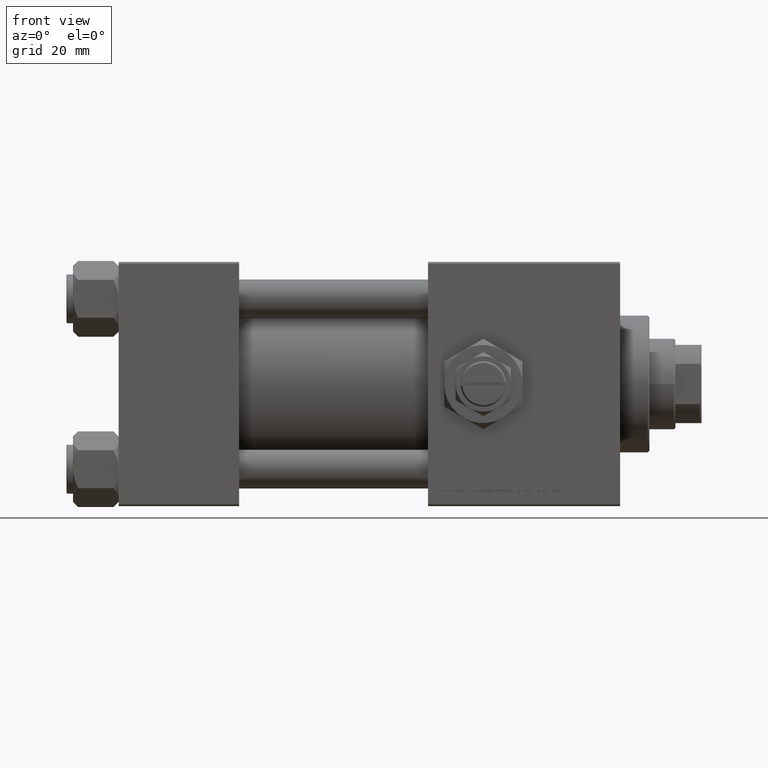
[diagram: clean part render]
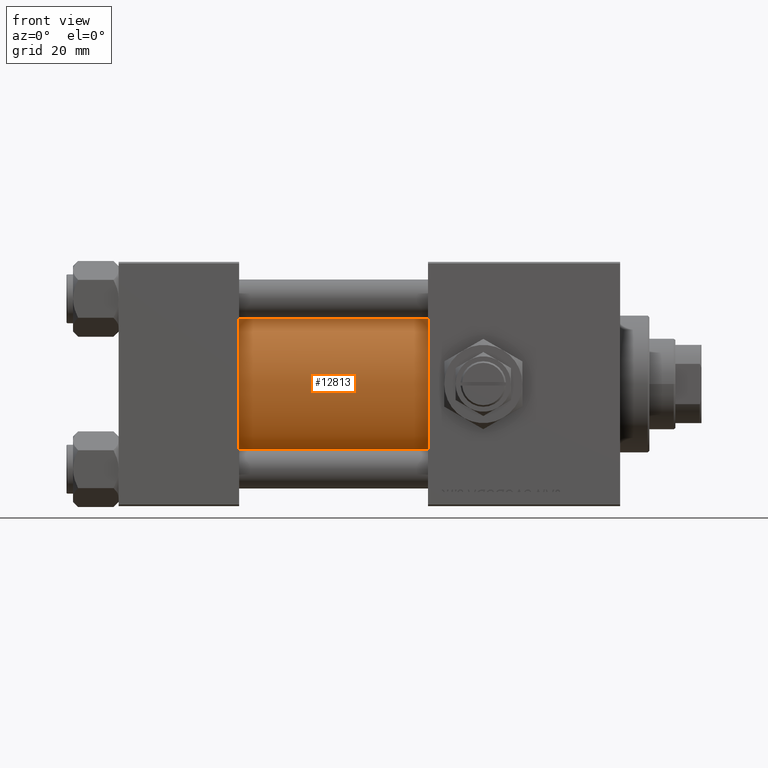
[diagram: same view with one face highlighted and labeled with its STEP entity id]
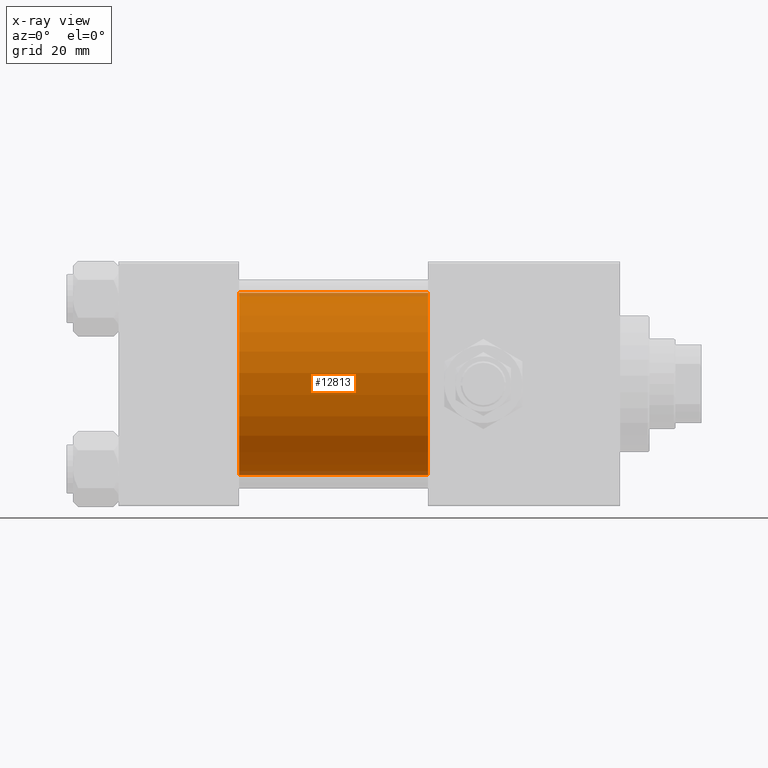
[diagram: x-ray of the same camera — body ghosted, the highlighted face saturated]
A machine part, front view. The second image highlights one B-rep face of the part: STEP entity #12813.
The next image is the same camera in x-ray: the body ghosted, the highlighted face saturated — about 4% of this face is hidden behind the body in this view.
In plain terms, the highlighted cylindrical surface (partial cylindrical patch) has radius 28 mm, axis along (-1, -0, -0).
Its self-contained STEP definition (entity closure, byte-faithful):
#1687 = EDGE_CURVE ( 'NONE', #24445, #44609, #29153, .T. ) ;
#1977 = ORIENTED_EDGE ( 'NONE', *, *, #17017, .T. ) ;
#2519 = CARTESIAN_POINT ( 'NONE',  ( 95.00000000000000000, -2.602085213965210642E-15, 28.00000000000000000 ) ) ;
#4693 = DIRECTION ( 'NONE',  ( -1.000000000000000000, -0.000000000000000000, -0.000000000000000000 ) ) ;
#5234 = LINE ( 'NONE', #17325, #42074 ) ;
#9062 = AXIS2_PLACEMENT_3D ( 'NONE', #31062, #11075, #18969 ) ;
#9189 = FACE_OUTER_BOUND ( 'NONE', #42716, .T. ) ;
#9947 = EDGE_CURVE ( 'NONE', #25914, #24445, #48574, .T. ) ;
#11075 = DIRECTION ( 'NONE',  ( 1.000000000000000000, 0.000000000000000000, 0.000000000000000000 ) ) ;
#12813 = ADVANCED_FACE ( 'NONE', ( #9189 ), #29192, .T. ) ;
#15985 = CARTESIAN_POINT ( 'NONE',  ( 37.00000000000000000, -2.602085213965210642E-15, 28.00000000000000000 ) ) ;
#17017 = EDGE_CURVE ( 'NONE', #25914, #48065, #5234, .T. ) ;
#17325 = CARTESIAN_POINT ( 'NONE',  ( 95.00000000000000000, -2.602085213965210642E-15, 28.00000000000000000 ) ) ;
#18969 = DIRECTION ( 'NONE',  ( 0.000000000000000000, 0.000000000000000000, -1.000000000000000000 ) ) ;
#19381 = CIRCLE ( 'NONE', #28645, 28.00000000000000000 ) ;
#24445 = VERTEX_POINT ( 'NONE', #44054 ) ;
#25914 = VERTEX_POINT ( 'NONE', #2519 ) ;
#28645 = AXIS2_PLACEMENT_3D ( 'NONE', #41309, #33404, #33147 ) ;
#29153 = LINE ( 'NONE', #45194, #29918 ) ;
#29192 = CYLINDRICAL_SURFACE ( 'NONE', #50346, 28.00000000000000000 ) ;
#29688 = DIRECTION ( 'NONE',  ( -1.000000000000000000, -0.000000000000000000, -0.000000000000000000 ) ) ;
#29918 = VECTOR ( 'NONE', #4693, 1000.000000000000000 ) ;
#30371 = ORIENTED_EDGE ( 'NONE', *, *, #1687, .F. ) ;
#31062 = CARTESIAN_POINT ( 'NONE',  ( 95.00000000000000000, -2.602085213965210642E-15, 0.000000000000000000 ) ) ;
#32618 = DIRECTION ( 'NONE',  ( 0.000000000000000000, 0.000000000000000000, 1.000000000000000000 ) ) ;
#33147 = DIRECTION ( 'NONE',  ( 0.000000000000000000, 0.000000000000000000, 1.000000000000000000 ) ) ;
#33404 = DIRECTION ( 'NONE',  ( 1.000000000000000000, -0.000000000000000000, 0.000000000000000000 ) ) ;
#34656 = CARTESIAN_POINT ( 'NONE',  ( 37.00000000000000000, 8.269258236473776482E-16, -28.00000000000000000 ) ) ;
#35529 = EDGE_CURVE ( 'NONE', #48065, #44609, #19381, .T. ) ;
#37099 = DIRECTION ( 'NONE',  ( -1.000000000000000000, -0.000000000000000000, -0.000000000000000000 ) ) ;
#40438 = ORIENTED_EDGE ( 'NONE', *, *, #35529, .T. ) ;
#41309 = CARTESIAN_POINT ( 'NONE',  ( 37.00000000000000000, -2.602085213965210642E-15, 0.000000000000000000 ) ) ;
#42074 = VECTOR ( 'NONE', #29688, 1000.000000000000000 ) ;
#42716 = EDGE_LOOP ( 'NONE', ( #30371, #45624, #1977, #40438 ) ) ;
#44054 = CARTESIAN_POINT ( 'NONE',  ( 95.00000000000000000, 8.269258236473776482E-16, -28.00000000000000000 ) ) ;
#44609 = VERTEX_POINT ( 'NONE', #34656 ) ;
#45194 = CARTESIAN_POINT ( 'NONE',  ( 95.00000000000000000, 8.269258236473776482E-16, -28.00000000000000000 ) ) ;
#45624 = ORIENTED_EDGE ( 'NONE', *, *, #9947, .F. ) ;
#48065 = VERTEX_POINT ( 'NONE', #15985 ) ;
#48574 = CIRCLE ( 'NONE', #9062, 28.00000000000000000 ) ;
#48934 = CARTESIAN_POINT ( 'NONE',  ( 95.00000000000000000, -2.602085213965210642E-15, 0.000000000000000000 ) ) ;
#50346 = AXIS2_PLACEMENT_3D ( 'NONE', #48934, #37099, #32618 ) ;